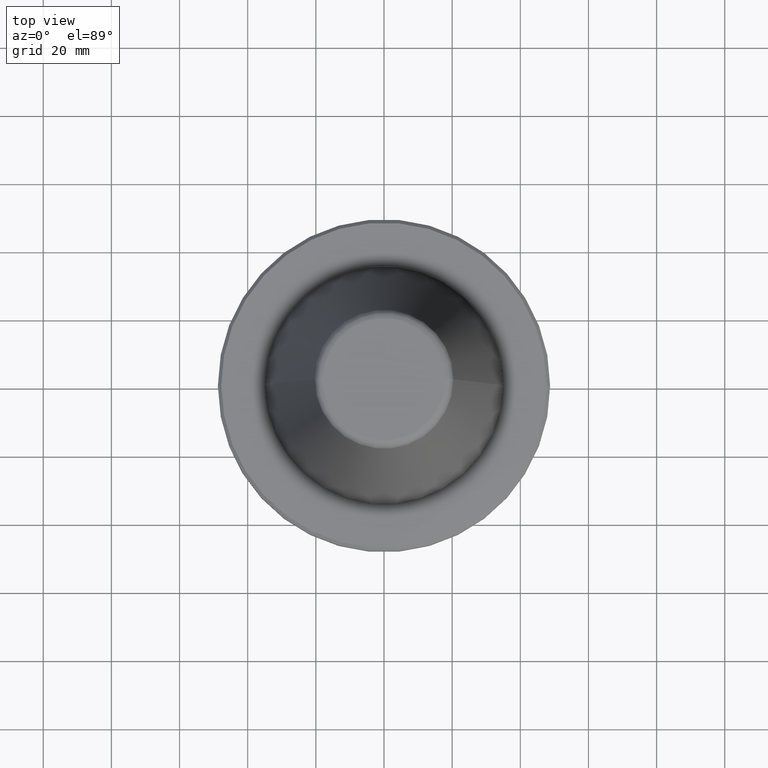
[diagram: clean part render]
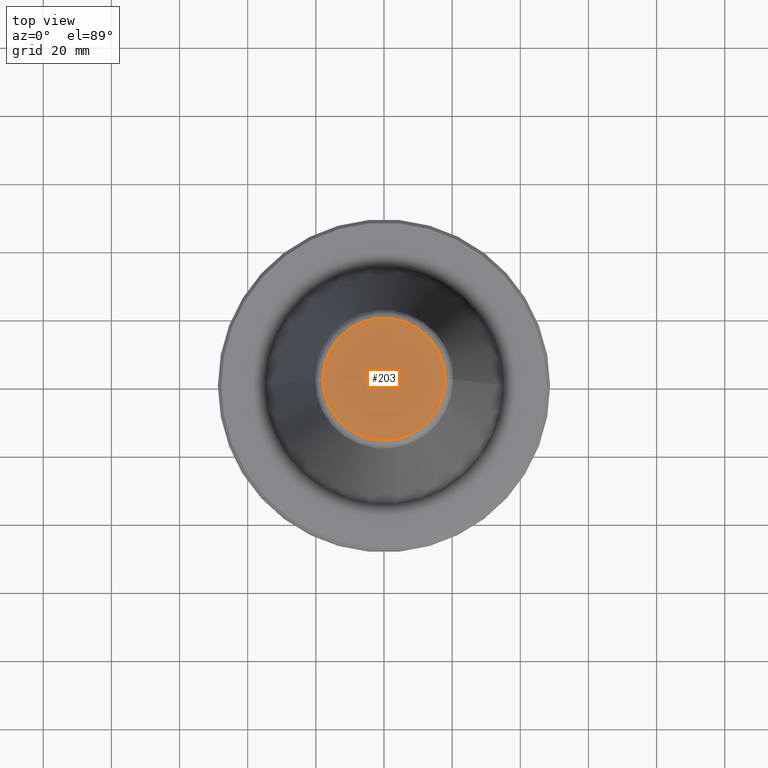
[diagram: same view with one face highlighted and labeled with its STEP entity id]
A machine part, top view. The second image highlights one B-rep face of the part: STEP entity #203.
In plain terms, the highlighted planar face has unit normal (0, 0, -1).
Its self-contained STEP definition (entity closure, byte-faithful):
#14 = DIRECTION ( 'NONE',  ( -0.0000000000000000000, -0.0000000000000000000, 1.000000000000000000 ) ) ;
#26 = CARTESIAN_POINT ( 'NONE',  ( -17.92446055806129500, 2.346591844926584100E-015, 101.7500000000000900 ) ) ;
#94 = AXIS2_PLACEMENT_3D ( 'NONE', #689, #14, #171 ) ;
#171 = DIRECTION ( 'NONE',  ( 1.000000000000000000, 0.0000000000000000000, 0.0000000000000000000 ) ) ;
#180 = VERTEX_POINT ( 'NONE', #877 ) ;
#203 = ADVANCED_FACE ( 'NONE', ( #528 ), #962, .F. ) ;
#255 = DIRECTION ( 'NONE',  ( 1.000000000000000000, 0.0000000000000000000, 0.0000000000000000000 ) ) ;
#320 = CIRCLE ( 'NONE', #94, 17.92446055806129500 ) ;
#345 = AXIS2_PLACEMENT_3D ( 'NONE', #876, #726, #255 ) ;
#356 = AXIS2_PLACEMENT_3D ( 'NONE', #958, #827, #934 ) ;
#436 = VERTEX_POINT ( 'NONE', #26 ) ;
#439 = EDGE_CURVE ( 'NONE', #436, #180, #728, .T. ) ;
#528 = FACE_OUTER_BOUND ( 'NONE', #780, .T. ) ;
#689 = CARTESIAN_POINT ( 'NONE',  ( 0.0000000000000000000, 0.0000000000000000000, 101.7500000000000900 ) ) ;
#726 = DIRECTION ( 'NONE',  ( -0.0000000000000000000, -0.0000000000000000000, 1.000000000000000000 ) ) ;
#728 = CIRCLE ( 'NONE', #345, 17.92446055806129500 ) ;
#780 = EDGE_LOOP ( 'NONE', ( #896, #916 ) ) ;
#827 = DIRECTION ( 'NONE',  ( 0.0000000000000000000, 0.0000000000000000000, -1.000000000000000000 ) ) ;
#834 = EDGE_CURVE ( 'NONE', #180, #436, #320, .T. ) ;
#876 = CARTESIAN_POINT ( 'NONE',  ( 0.0000000000000000000, 0.0000000000000000000, 101.7500000000000900 ) ) ;
#877 = CARTESIAN_POINT ( 'NONE',  ( 17.92446055806129500, 0.0000000000000000000, 101.7500000000000900 ) ) ;
#896 = ORIENTED_EDGE ( 'NONE', *, *, #834, .T. ) ;
#916 = ORIENTED_EDGE ( 'NONE', *, *, #439, .T. ) ;
#934 = DIRECTION ( 'NONE',  ( -1.000000000000000000, 0.0000000000000000000, -0.0000000000000000000 ) ) ;
#958 = CARTESIAN_POINT ( 'NONE',  ( 0.0000000000000000000, 17.92446055806129500, 101.7500000000000100 ) ) ;
#962 = PLANE ( 'NONE',  #356 ) ;